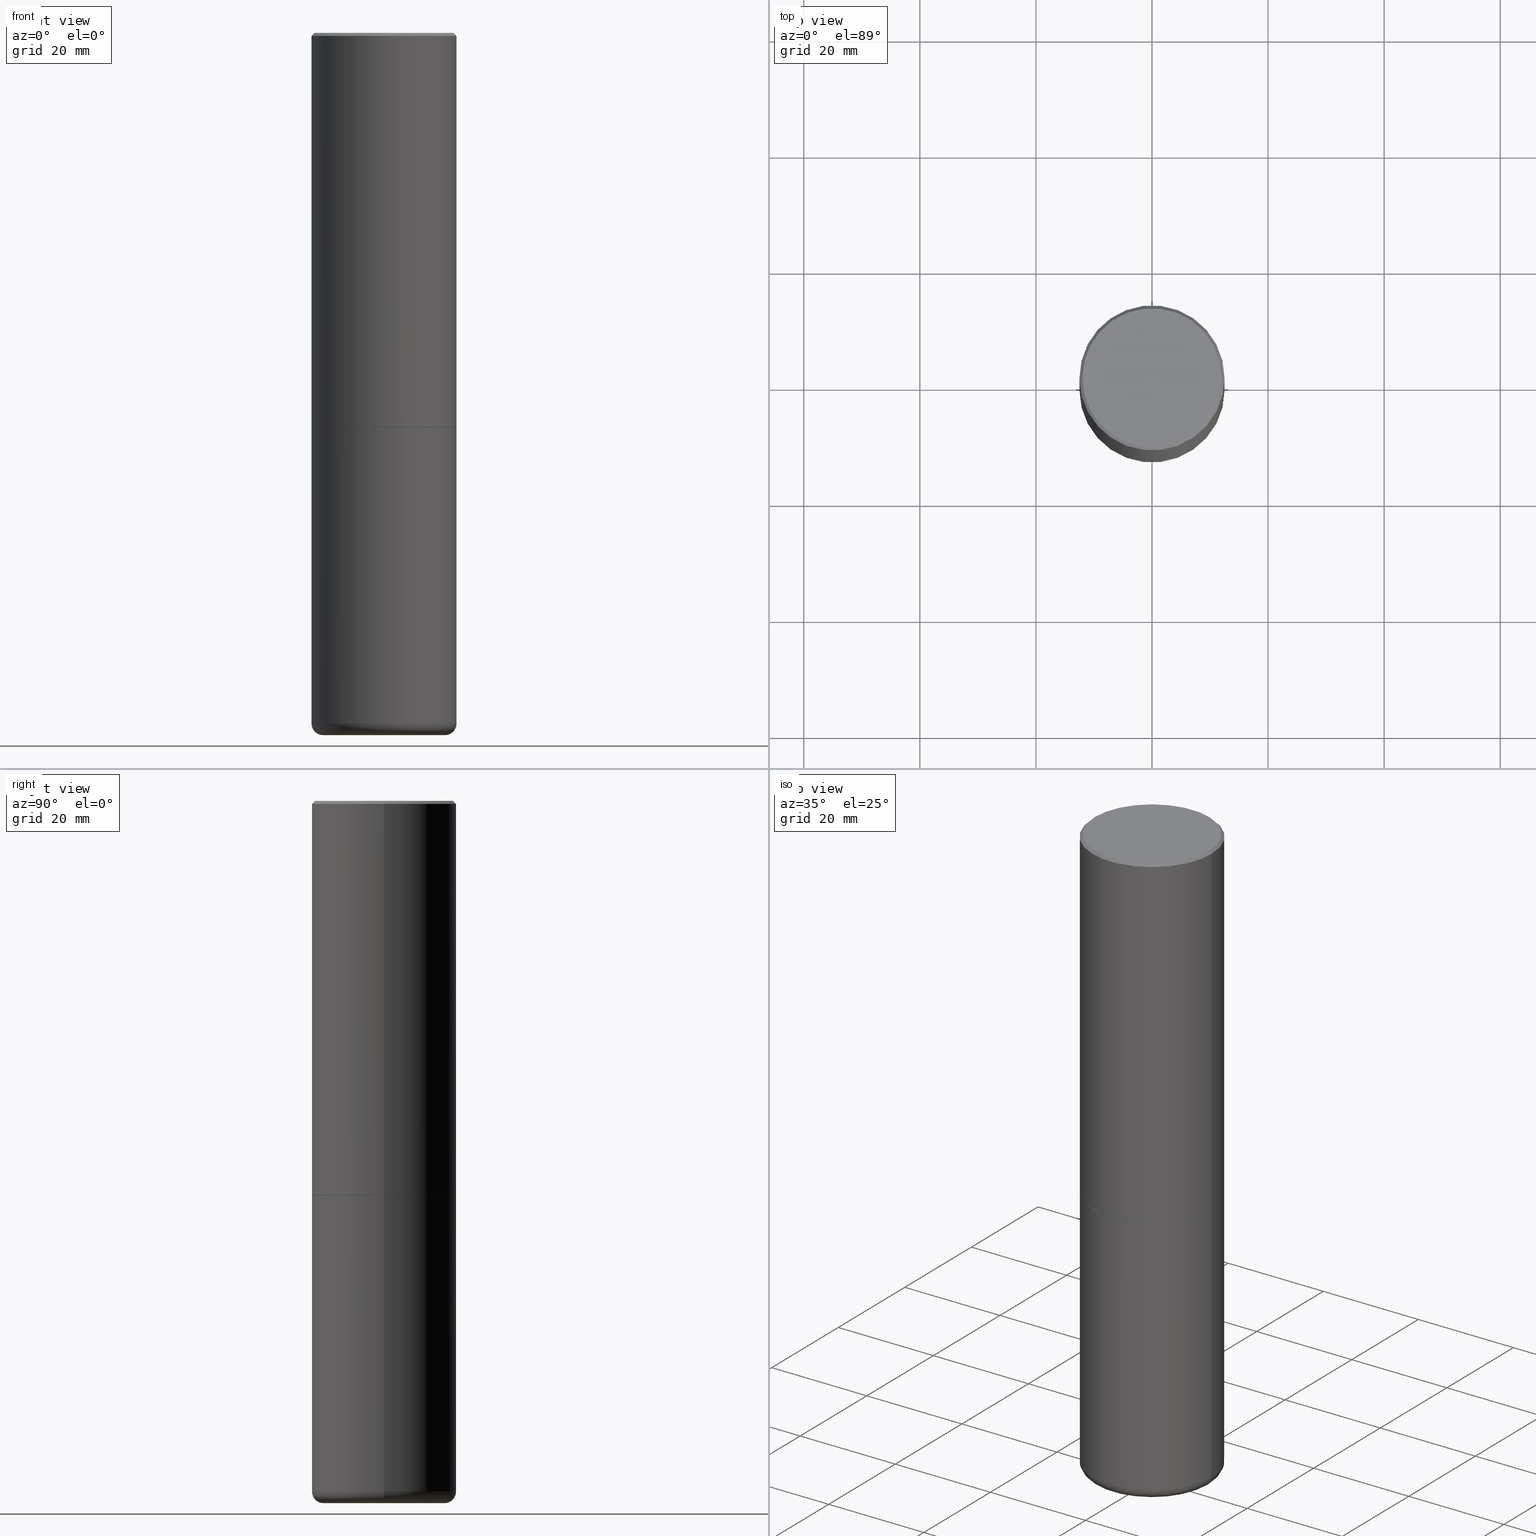
[diagram: canonical four-view strip — front | top / right | iso, engineering-drawing reading convention]
A machine part, canonical four-view strip (front | top / right | iso — engineering-drawing reading convention). The complete STEP part file that produces these views, byte-faithful:
ISO-10303-21;
HEADER;
FILE_DESCRIPTION (( 'STEP AP203' ),
    '1' );
FILE_NAME ('47086.STEP',
    '2024-03-05T19:18:14',
    ( '' ),
    ( '' ),
    'SwSTEP 2.0',
    'SolidWorks 2023',
    '' );
FILE_SCHEMA (( 'CONFIG_CONTROL_DESIGN' ));
ENDSEC;

DATA;
#1 = APPROVAL_STATUS ( 'not_yet_approved' ) ;
#2 = EDGE_CURVE ( 'NONE', #334, #208, #263, .T. ) ;
#3 = DIRECTION ( 'NONE',  ( -2.438088387897960049E-29, 3.491481338843145188E-15, 1.000000000000000000 ) ) ;
#4 = VECTOR ( 'NONE', #309, 39.37007874015748143 ) ;
#5 = APPROVAL ( #348, 'UNSPECIFIED' ) ;
#6 = CARTESIAN_POINT ( 'NONE',  ( -0.4921499999999999764, -9.355730456439111248E-15, -2.677199999999999580 ) ) ;
#7 = DIRECTION ( 'NONE',  ( -1.000000000000000000, 6.982962677686265922E-15, -4.876176775795935793E-29 ) ) ;
#8 = ADVANCED_FACE ( 'NONE', ( #85 ), #271, .T. ) ;
#9 = AXIS2_PLACEMENT_3D ( 'NONE', #167, #198, #79 ) ;
#10 = AXIS2_PLACEMENT_3D ( 'NONE', #403, #369, #173 ) ;
#11 = CC_DESIGN_PERSON_AND_ORGANIZATION_ASSIGNMENT ( #30, #122, ( #178 ) ) ;
#12 = DIRECTION ( 'NONE',  ( 7.105427357601001859E-15, 1.000000000000000000, -3.491481338843145583E-15 ) ) ;
#13 = CARTESIAN_POINT ( 'NONE',  ( 4.890937612370299433E-31, -6.982962677686328587E-17, -0.02000000000000010797 ) ) ;
#14 = ORIENTED_EDGE ( 'NONE', *, *, #42, .F. ) ;
#15 = CARTESIAN_POINT ( 'NONE',  ( 0.4921499999999999764, -1.278405892217416209E-14, -2.677199999999999580 ) ) ;
#16 = ADVANCED_FACE ( 'NONE', ( #177 ), #114, .T. ) ;
#17 = CIRCLE ( 'NONE', #191, 0.4921499999999999764 ) ;
#18 = AXIS2_PLACEMENT_3D ( 'NONE', #111, #297, #236 ) ;
#19 = VERTEX_POINT ( 'NONE', #305 ) ;
#20 = EDGE_LOOP ( 'NONE', ( #171, #82, #399, #50 ) ) ;
#21 = CONICAL_SURFACE ( 'NONE', #250, 0.4911499999999999755, 0.7853981633974482790 ) ;
#22 = ORGANIZATION ( 'UNSPECIFIED', 'UNSPECIFIED', '' ) ;
#23 = DIRECTION ( 'NONE',  ( -2.445468806185136597E-29, 3.491481338843145583E-15, 1.000000000000000000 ) ) ;
#24 = CARTESIAN_POINT ( 'NONE',  ( 1.164972429890475298E-28, -1.663271880198097531E-14, -4.763799999999999812 ) ) ;
#25 = APPLICATION_CONTEXT ( 'configuration controlled 3d designs of mechanical parts and assemblies' ) ;
#26 = CARTESIAN_POINT ( 'NONE',  ( 6.547009087918846705E-29, -9.347393840350866318E-15, -2.677199999999999580 ) ) ;
#27 = ADVANCED_FACE ( 'NONE', ( #65 ), #216, .T. ) ;
#28 = AXIS2_PLACEMENT_3D ( 'NONE', #192, #93, #253 ) ;
#29 = CARTESIAN_POINT ( 'NONE',  ( 1.164972429890475298E-28, -1.663271880198097531E-14, -4.763799999999999812 ) ) ;
#30 = PERSON_AND_ORGANIZATION ( #395, #22 ) ;
#31 = DIRECTION ( 'NONE',  ( -2.445468806185136877E-29, 3.491481338843145188E-15, 1.000000000000000000 ) ) ;
#32 = DIRECTION ( 'NONE',  ( -2.445468806185136597E-29, 3.491481338843145583E-15, 1.000000000000000000 ) ) ;
#33 = AXIS2_PLACEMENT_3D ( 'NONE', #389, #70, #353 ) ;
#34 = CARTESIAN_POINT ( 'NONE',  ( 0.4921499999999999764, -3.446223716380122349E-15, -0.02000000000000010797 ) ) ;
#35 = FACE_OUTER_BOUND ( 'NONE', #174, .T. ) ;
#36 = EDGE_CURVE ( 'NONE', #298, #201, #383, .T. ) ;
#37 = CARTESIAN_POINT ( 'NONE',  ( -0.4911499999999999755, -5.852264739316912816E-15, -2.677200000000000024 ) ) ;
#38 = CARTESIAN_POINT ( 'NONE',  ( -0.4134499999999999287, -1.342020027961388708E-14, -4.685099999999999376 ) ) ;
#39 = CIRCLE ( 'NONE', #136, 0.4921499999999999764 ) ;
#40 = CARTESIAN_POINT ( 'NONE',  ( 0.4921500000000000874, -3.436665081823296565E-15, 2.399810400207970163E-29 ) ) ;
#41 = ORIENTED_EDGE ( 'NONE', *, *, #299, .T. ) ;
#42 = EDGE_CURVE ( 'NONE', #408, #201, #47, .T. ) ;
#43 = DIRECTION ( 'NONE',  ( -2.445468806185136597E-29, 3.491481338843145583E-15, 1.000000000000000000 ) ) ;
#44 = EDGE_LOOP ( 'NONE', ( #231, #308 ) ) ;
#45 = CARTESIAN_POINT ( 'NONE',  ( 0.000000000000000000, 0.000000000000000000, 0.000000000000000000 ) ) ;
#46 = ORIENTED_EDGE ( 'NONE', *, *, #59, .T. ) ;
#47 = CIRCLE ( 'NONE', #219, 0.4921499999999999764 ) ;
#48 = LOCAL_TIME ( 14, 18, 14.00000000000000000, #150 ) ;
#49 = CARTESIAN_POINT ( 'NONE',  ( 0.000000000000000000, 0.000000000000000000, 0.000000000000000000 ) ) ;
#50 = ORIENTED_EDGE ( 'NONE', *, *, #81, .F. ) ;
#51 = EDGE_CURVE ( 'NONE', #203, #334, #161, .T. ) ;
#52 = DIRECTION ( 'NONE',  ( -2.445468806185136597E-29, 3.491481338843145583E-15, 1.000000000000000000 ) ) ;
#53 = ORIENTED_EDGE ( 'NONE', *, *, #235, .F. ) ;
#54 = ADVANCED_FACE ( 'NONE', ( #211 ), #331, .T. ) ;
#55 = ORIENTED_EDGE ( 'NONE', *, *, #232, .T. ) ;
#56 = AXIS2_PLACEMENT_3D ( 'NONE', #62, #273, #410 ) ;
#57 = ORIENTED_EDGE ( 'NONE', *, *, #265, .T. ) ;
#58 = EDGE_CURVE ( 'NONE', #366, #328, #237, .T. ) ;
#59 = EDGE_CURVE ( 'NONE', #239, #328, #60, .T. ) ;
#60 = LINE ( 'NONE', #311, #4 ) ;
#61 = APPROVAL_STATUS ( 'not_yet_approved' ) ;
#62 = CARTESIAN_POINT ( 'NONE',  ( 0.000000000000000000, 0.000000000000000000, 0.000000000000000000 ) ) ;
#63 = COORDINATED_UNIVERSAL_TIME_OFFSET ( 5, 0, .BEHIND. ) ;
#64 = CIRCLE ( 'NONE', #357, 0.4721499999999996255 ) ;
#65 = FACE_OUTER_BOUND ( 'NONE', #20, .T. ) ;
#66 = DIMENSIONAL_EXPONENTS ( 1.000000000000000000, 0.000000000000000000, 0.000000000000000000, 0.000000000000000000, 0.000000000000000000, 0.000000000000000000, 0.000000000000000000 ) ;
#67 = DIRECTION ( 'NONE',  ( 1.000000000000000000, -6.982962677686268288E-15, 0.000000000000000000 ) ) ;
#68 = DIRECTION ( 'NONE',  ( -2.445468806185136597E-29, 3.491481338843145583E-15, 1.000000000000000000 ) ) ;
#69 = FACE_OUTER_BOUND ( 'NONE', #166, .T. ) ;
#70 = DIRECTION ( 'NONE',  ( 2.438088387897960049E-29, -3.491481338843145188E-15, -1.000000000000000000 ) ) ;
#71 = DIRECTION ( 'NONE',  ( -2.445468806185136877E-29, 3.491481338843145188E-15, 1.000000000000000000 ) ) ;
#72 = DIRECTION ( 'NONE',  ( 1.000000000000000000, -6.982962677686265922E-15, 0.000000000000000000 ) ) ;
#73 = CLOSED_SHELL ( 'NONE', ( #319, #156, #194, #27, #54, #16 ) ) ;
#74 = LOCAL_TIME ( 14, 18, 14.00000000000000000, #415 ) ;
#75 = LENGTH_MEASURE_WITH_UNIT ( LENGTH_MEASURE( 0.02539999999999999897 ), #102 );
#76 = EDGE_LOOP ( 'NONE', ( #206, #168, #137, #375 ) ) ;
#77 = ORIENTED_EDGE ( 'NONE', *, *, #58, .F. ) ;
#78 = DIRECTION ( 'NONE',  ( -2.445468806185136877E-29, 3.491481338843145188E-15, 1.000000000000000000 ) ) ;
#79 = DIRECTION ( 'NONE',  ( 1.000000000000000000, -6.982962677686265922E-15, 4.882029041999365698E-29 ) ) ;
#80 = ORIENTED_EDGE ( 'NONE', *, *, #278, .T. ) ;
#81 = EDGE_CURVE ( 'NONE', #201, #408, #39, .T. ) ;
#82 = ORIENTED_EDGE ( 'NONE', *, *, #390, .T. ) ;
#83 = EDGE_CURVE ( 'NONE', #108, #103, #188, .T. ) ;
#84 = VECTOR ( 'NONE', #134, 39.37007874015748143 ) ;
#85 = FACE_OUTER_BOUND ( 'NONE', #295, .T. ) ;
#86 = APPLICATION_CONTEXT ( 'configuration controlled 3d designs of mechanical parts and assemblies' ) ;
#87 = APPLICATION_PROTOCOL_DEFINITION ( 'international standard', 'config_control_design', 1994, #25 ) ;
#88 = EDGE_LOOP ( 'NONE', ( #338, #234, #14, #371 ) ) ;
#89 = DATE_AND_TIME ( #128, #74 ) ;
#90 = MANIFOLD_SOLID_BREP ( 'Body-Move/Copy2[1]', #73 ) ;
#91 = ADVANCED_FACE ( 'NONE', ( #69 ), #115, .T. ) ;
#92 = EDGE_LOOP ( 'NONE', ( #303, #80, #176, #117 ) ) ;
#93 = DIRECTION ( 'NONE',  ( -2.445468806185136597E-29, 3.491481338843145583E-15, 1.000000000000000000 ) ) ;
#94 = DATE_TIME_ROLE ( 'classification_date' ) ;
#95 = DIRECTION ( 'NONE',  ( -2.445468806185136597E-29, 3.491481338843145583E-15, 1.000000000000000000 ) ) ;
#96 = COORDINATED_UNIVERSAL_TIME_OFFSET ( 5, 0, .BEHIND. ) ;
#97 = CARTESIAN_POINT ( 'NONE',  ( 6.547009087918847826E-29, -9.347393840350869473E-15, -2.677200000000000024 ) ) ;
#98 = DIRECTION ( 'NONE',  ( -2.445468806185136597E-29, 3.491481338843145583E-15, 1.000000000000000000 ) ) ;
#99 = AXIS2_PLACEMENT_3D ( 'NONE', #109, #52, #336 ) ;
#100 = CARTESIAN_POINT ( 'NONE',  ( 6.547009087918847826E-29, -9.347393840350869473E-15, -2.677200000000000024 ) ) ;
#101 = LINE ( 'NONE', #204, #197 ) ;
#102 =( LENGTH_UNIT ( ) NAMED_UNIT ( * ) SI_UNIT ( $, .METRE. ) );
#103 = VERTEX_POINT ( 'NONE', #159 ) ;
#104 = CIRCLE ( 'NONE', #230, 0.4911499999999999755 ) ;
#105 = APPROVAL_PERSON_ORGANIZATION ( #417, #244, #214 ) ;
#106 = CC_DESIGN_PERSON_AND_ORGANIZATION_ASSIGNMENT ( #184, #313, ( #274 ) ) ;
#107 = CARTESIAN_POINT ( 'NONE',  ( 0.4134499999999999287, -1.951982472107036283E-14, -4.763799999999999812 ) ) ;
#108 = VERTEX_POINT ( 'NONE', #37 ) ;
#109 = CARTESIAN_POINT ( 'NONE',  ( 6.544563619112662223E-29, -9.343902359012024888E-15, -2.676199999999999690 ) ) ;
#110 = EDGE_LOOP ( 'NONE', ( #270, #292, #46, #57 ) ) ;
#111 = CARTESIAN_POINT ( 'NONE',  ( 4.890937612370299433E-31, -6.982962677686328587E-17, -0.02000000000000010797 ) ) ;
#112 = AXIS2_PLACEMENT_3D ( 'NONE', #279, #416, #247 ) ;
#113 = EDGE_LOOP ( 'NONE', ( #53, #144 ) ) ;
#114 = PLANE ( 'NONE',  #350 ) ;
#115 = CONICAL_SURFACE ( 'NONE', #28, 0.4911499999999999755, 0.7853981633974482790 ) ;
#116 = CALENDAR_DATE ( 2024, 5, 3 ) ;
#117 = ORIENTED_EDGE ( 'NONE', *, *, #59, .F. ) ;
#118 = PERSON_AND_ORGANIZATION ( #395, #22 ) ;
#119 = EDGE_CURVE ( 'NONE', #108, #267, #147, .T. ) ;
#120 = DIRECTION ( 'NONE',  ( -6.982962677686266711E-15, -1.000000000000000000, 3.491481338843145583E-15 ) ) ;
#121 = PRODUCT_DEFINITION_SHAPE ( 'NONE', 'NONE',  #377 ) ;
#122 = PERSON_AND_ORGANIZATION_ROLE ( 'creator' ) ;
#123 = EDGE_LOOP ( 'NONE', ( #140, #402, #238, #262 ) ) ;
#124 = PERSON_AND_ORGANIZATION ( #395, #22 ) ;
#125 = AXIS2_PLACEMENT_3D ( 'NONE', #38, #12, #193 ) ;
#126 = AXIS2_PLACEMENT_3D ( 'NONE', #248, #387, #345 ) ;
#127 = DIRECTION ( 'NONE',  ( -2.445468806185136597E-29, 3.491481338843145583E-15, 1.000000000000000000 ) ) ;
#128 = CALENDAR_DATE ( 2024, 5, 3 ) ;
#129 = CARTESIAN_POINT ( 'NONE',  ( 4.890937612370299433E-31, -6.982962677686328587E-17, -0.02000000000000010797 ) ) ;
#130 = EDGE_CURVE ( 'NONE', #267, #108, #104, .T. ) ;
#131 = CARTESIAN_POINT ( 'NONE',  ( 0.4921499999999999764, -1.979460430243731302E-14, -4.685099999999999376 ) ) ;
#132 = FACE_OUTER_BOUND ( 'NONE', #44, .T. ) ;
#133 = CARTESIAN_POINT ( 'NONE',  ( -0.4721499999999996255, 3.331920641658000829E-15, 2.774533118565036250E-16 ) ) ;
#134 = DIRECTION ( 'NONE',  ( -2.445468806185136877E-29, 3.491481338843145188E-15, 1.000000000000000000 ) ) ;
#135 = ORIENTED_EDGE ( 'NONE', *, *, #396, .T. ) ;
#136 = AXIS2_PLACEMENT_3D ( 'NONE', #26, #245, #320 ) ;
#137 = ORIENTED_EDGE ( 'NONE', *, *, #2, .T. ) ;
#138 = AXIS2_PLACEMENT_3D ( 'NONE', #260, #401, #261 ) ;
#139 = CARTESIAN_POINT ( 'NONE',  ( 0.4921499999999999764, -3.446223716380122349E-15, -0.02000000000000010797 ) ) ;
#140 = ORIENTED_EDGE ( 'NONE', *, *, #83, .F. ) ;
#141 = ORIENTED_EDGE ( 'NONE', *, *, #326, .T. ) ;
#142 = VERTEX_POINT ( 'NONE', #285 ) ;
#143 = CIRCLE ( 'NONE', #125, 0.07869999999999996443 ) ;
#144 = ORIENTED_EDGE ( 'NONE', *, *, #51, .F. ) ;
#145 = ORIENTED_EDGE ( 'NONE', *, *, #346, .T. ) ;
#146 = DIRECTION ( 'NONE',  ( -2.445468806185136597E-29, 3.491481338843145583E-15, 1.000000000000000000 ) ) ;
#147 = CIRCLE ( 'NONE', #394, 0.4911499999999999755 ) ;
#148 = APPROVAL_DATE_TIME ( #152, #244 ) ;
#149 = CARTESIAN_POINT ( 'NONE',  ( 4.890937612370299433E-31, -6.982962677686328587E-17, -0.02000000000000010797 ) ) ;
#150 = COORDINATED_UNIVERSAL_TIME_OFFSET ( 5, 0, .BEHIND. ) ;
#151 = DIRECTION ( 'NONE',  ( -2.445468806185136597E-29, 3.491481338843145583E-15, 1.000000000000000000 ) ) ;
#152 = DATE_AND_TIME ( #189, #242 ) ;
#153 = LINE ( 'NONE', #256, #225 ) ;
#154 = CALENDAR_DATE ( 2024, 5, 3 ) ;
#155 = CLOSED_SHELL ( 'NONE', ( #91, #351, #307, #381, #8, #287, #209, #272 ) ) ;
#156 = ADVANCED_FACE ( 'NONE', ( #35 ), #257, .T. ) ;
#157 = VECTOR ( 'NONE', #78, 39.37007874015748143 ) ;
#158 = FACE_OUTER_BOUND ( 'NONE', #330, .T. ) ;
#159 = CARTESIAN_POINT ( 'NONE',  ( -0.4921500000000003094, -1.209929918851106266E-15, -2.676199999999999690 ) ) ;
#160 = DIRECTION ( 'NONE',  ( -0.7071067811865474617, 7.493145998870352582E-15, 0.7071067811865474617 ) ) ;
#161 = CIRCLE ( 'NONE', #304, 0.4134499999999999287 ) ;
#162 = CARTESIAN_POINT ( 'NONE',  ( -0.4911499999999999755, -5.857563193665136796E-15, -2.677200000000000024 ) ) ;
#163 = CC_DESIGN_SECURITY_CLASSIFICATION ( #212, ( #178 ) ) ;
#164 = CC_DESIGN_PERSON_AND_ORGANIZATION_ASSIGNMENT ( #275, #352, ( #377 ) ) ;
#165 = DIRECTION ( 'NONE',  ( 1.000000000000000000, -6.982962677686265922E-15, 4.876176775795935793E-29 ) ) ;
#166 = EDGE_LOOP ( 'NONE', ( #182, #325, #404, #218 ) ) ;
#167 = CARTESIAN_POINT ( 'NONE',  ( -6.785034193178930130E-45, 9.687230607472910058E-31, 2.774533118565267978E-16 ) ) ;
#168 = ORIENTED_EDGE ( 'NONE', *, *, #51, .T. ) ;
#169 = EDGE_CURVE ( 'NONE', #208, #408, #153, .T. ) ;
#170 = CIRCLE ( 'NONE', #9, 0.4721499999999996255 ) ;
#171 = ORIENTED_EDGE ( 'NONE', *, *, #36, .F. ) ;
#172 = CC_DESIGN_APPROVAL ( #244, ( #178 ) ) ;
#173 = DIRECTION ( 'NONE',  ( 1.000000000000000000, -6.982962677686265922E-15, 0.000000000000000000 ) ) ;
#174 = EDGE_LOOP ( 'NONE', ( #301, #55, #374, #276 ) ) ;
#175 = FACE_OUTER_BOUND ( 'NONE', #110, .T. ) ;
#176 = ORIENTED_EDGE ( 'NONE', *, *, #58, .T. ) ;
#177 = FACE_OUTER_BOUND ( 'NONE', #113, .T. ) ;
#178 = PRODUCT_DEFINITION_FORMATION_WITH_SPECIFIED_SOURCE ( 'ANY', '', #274, .NOT_KNOWN. ) ;
#179 = ORIENTED_EDGE ( 'NONE', *, *, #42, .T. ) ;
#180 = DIRECTION ( 'NONE',  ( 1.000000000000000000, -6.982962677686265922E-15, 0.000000000000000000 ) ) ;
#181 = DATE_AND_TIME ( #220, #413 ) ;
#182 = ORIENTED_EDGE ( 'NONE', *, *, #130, .T. ) ;
#183 = AXIS2_PLACEMENT_3D ( 'NONE', #13, #365, #207 ) ;
#184 = PERSON_AND_ORGANIZATION ( #395, #22 ) ;
#185 = CIRCLE ( 'NONE', #99, 0.4921500000000003094 ) ;
#186 = CARTESIAN_POINT ( 'NONE',  ( -0.4921499999999999764, 3.496936074043332897E-15, -2.420853904668951509E-29 ) ) ;
#187 = SECURITY_CLASSIFICATION_LEVEL ( 'unclassified' ) ;
#188 = LINE ( 'NONE', #162, #269 ) ;
#189 = CALENDAR_DATE ( 2024, 5, 3 ) ;
#190 = DIRECTION ( 'NONE',  ( -2.445468806185136597E-29, 3.491481338843145583E-15, 1.000000000000000000 ) ) ;
#191 = AXIS2_PLACEMENT_3D ( 'NONE', #129, #127, #226 ) ;
#192 = CARTESIAN_POINT ( 'NONE',  ( 6.547009087918847826E-29, -9.347393840350869473E-15, -2.677200000000000024 ) ) ;
#193 = DIRECTION ( 'NONE',  ( -1.000000000000000000, 7.105427357600995548E-15, 0.000000000000000000 ) ) ;
#194 = ADVANCED_FACE ( 'NONE', ( #158 ), #281, .F. ) ;
#195 = DIRECTION ( 'NONE',  ( 1.000000000000000000, -6.982962677686265922E-15, 4.876176775795935793E-29 ) ) ;
#196 = CC_DESIGN_PERSON_AND_ORGANIZATION_ASSIGNMENT ( #124, #217, ( #212 ) ) ;
#197 = VECTOR ( 'NONE', #324, 39.37007874015748854 ) ;
#198 = DIRECTION ( 'NONE',  ( -2.445468806185136597E-29, 3.491481338843145583E-15, 1.000000000000000000 ) ) ;
#199 = CIRCLE ( 'NONE', #138, 0.4921499999999999764 ) ;
#200 = ORIENTED_EDGE ( 'NONE', *, *, #265, .F. ) ;
#201 = VERTEX_POINT ( 'NONE', #6 ) ;
#202 = DIRECTION ( 'NONE',  ( -2.445468806185136597E-29, 3.491481338843145583E-15, 1.000000000000000000 ) ) ;
#203 = VERTEX_POINT ( 'NONE', #290 ) ;
#204 = CARTESIAN_POINT ( 'NONE',  ( 0.4911499999999999755, -1.277707595949647924E-14, -2.677200000000000024 ) ) ;
#205 = CIRCLE ( 'NONE', #317, 0.4921500000000003094 ) ;
#206 = ORIENTED_EDGE ( 'NONE', *, *, #232, .F. ) ;
#207 = DIRECTION ( 'NONE',  ( -1.000000000000000000, 6.982962677686265922E-15, 0.000000000000000000 ) ) ;
#208 = VERTEX_POINT ( 'NONE', #131 ) ;
#209 = ADVANCED_FACE ( 'NONE', ( #132 ), #259, .F. ) ;
#210 = ORIENTED_EDGE ( 'NONE', *, *, #215, .T. ) ;
#211 = FACE_OUTER_BOUND ( 'NONE', #76, .T. ) ;
#212 = SECURITY_CLASSIFICATION ( '', '', #187 ) ;
#213 = DIRECTION ( 'NONE',  ( 1.000000000000000000, -6.982962677686267499E-15, 4.883557194083112340E-29 ) ) ;
#214 = APPROVAL_ROLE ( '' ) ;
#215 = EDGE_CURVE ( 'NONE', #19, #239, #64, .T. ) ;
#216 = CYLINDRICAL_SURFACE ( 'NONE', #56, 0.4921499999999999764 ) ;
#217 = PERSON_AND_ORGANIZATION_ROLE ( 'classification_officer' ) ;
#218 = ORIENTED_EDGE ( 'NONE', *, *, #339, .F. ) ;
#219 = AXIS2_PLACEMENT_3D ( 'NONE', #418, #151, #379 ) ;
#220 = CALENDAR_DATE ( 2024, 5, 3 ) ;
#221 = DIRECTION ( 'NONE',  ( 1.000000000000000000, -6.982962677686268288E-15, 0.000000000000000000 ) ) ;
#222 = APPROVAL_DATE_TIME ( #181, #288 ) ;
#223 = CARTESIAN_POINT ( 'NONE',  ( 1.164972429890475298E-28, -1.663271880198097531E-14, -4.763799999999999812 ) ) ;
#224 = DIRECTION ( 'NONE',  ( 1.000000000000000000, -6.982962677686265922E-15, 4.882029041999365698E-29 ) ) ;
#225 = VECTOR ( 'NONE', #71, 39.37007874015748143 ) ;
#226 = DIRECTION ( 'NONE',  ( 1.000000000000000000, -6.982962677686265922E-15, 0.000000000000000000 ) ) ;
#227 = MANIFOLD_SOLID_BREP ( 'Body-Move/Copy2[2]', #155 ) ;
#228 = DIRECTION ( 'NONE',  ( 1.000000000000000000, -6.982962677686268288E-15, 0.000000000000000000 ) ) ;
#229 = FACE_OUTER_BOUND ( 'NONE', #92, .T. ) ;
#230 = AXIS2_PLACEMENT_3D ( 'NONE', #322, #68, #221 ) ;
#231 = ORIENTED_EDGE ( 'NONE', *, *, #130, .F. ) ;
#232 = EDGE_CURVE ( 'NONE', #203, #298, #143, .T. ) ;
#233 = CYLINDRICAL_SURFACE ( 'NONE', #312, 0.4921499999999999764 ) ;
#234 = ORIENTED_EDGE ( 'NONE', *, *, #36, .T. ) ;
#235 = EDGE_CURVE ( 'NONE', #334, #203, #386, .T. ) ;
#236 = DIRECTION ( 'NONE',  ( -1.000000000000000000, 6.982962677686265922E-15, 0.000000000000000000 ) ) ;
#237 = CIRCLE ( 'NONE', #378, 0.4921499999999999764 ) ;
#238 = ORIENTED_EDGE ( 'NONE', *, *, #339, .T. ) ;
#239 = VERTEX_POINT ( 'NONE', #133 ) ;
#240 = DIRECTION ( 'NONE',  ( 2.438088387897960049E-29, -3.491481338843145188E-15, -1.000000000000000000 ) ) ;
#241 = CONICAL_SURFACE ( 'NONE', #183, 0.4921499999999999764, 0.7853981633974471688 ) ;
#242 = LOCAL_TIME ( 14, 18, 14.00000000000000000, #63 ) ;
#243 = APPROVAL_ROLE ( '' ) ;
#244 = APPROVAL ( #1, 'UNSPECIFIED' ) ;
#245 = DIRECTION ( 'NONE',  ( -2.445468806185136597E-29, 3.491481338843145583E-15, 1.000000000000000000 ) ) ;
#246 = PERSON_AND_ORGANIZATION ( #395, #22 ) ;
#247 = DIRECTION ( 'NONE',  ( 1.000000000000000000, -6.982962677686265922E-15, 4.876176775795935793E-29 ) ) ;
#248 = CARTESIAN_POINT ( 'NONE',  ( 0.000000000000000000, 0.000000000000000000, 0.000000000000000000 ) ) ;
#249 = DIRECTION ( 'NONE',  ( 1.000000000000000000, -6.982962677686247778E-15, 0.000000000000000000 ) ) ;
#250 = AXIS2_PLACEMENT_3D ( 'NONE', #97, #321, #228 ) ;
#251 = COORDINATED_UNIVERSAL_TIME_OFFSET ( 5, 0, .BEHIND. ) ;
#252 =( GEOMETRIC_REPRESENTATION_CONTEXT ( 3 ) GLOBAL_UNCERTAINTY_ASSIGNED_CONTEXT ( ( #411 ) ) GLOBAL_UNIT_ASSIGNED_CONTEXT ( ( #302, #327, #400 ) ) REPRESENTATION_CONTEXT ( 'NONE', 'WORKASPACE' ) );
#253 = DIRECTION ( 'NONE',  ( 1.000000000000000000, -6.982962677686268288E-15, 0.000000000000000000 ) ) ;
#254 = PERSON_AND_ORGANIZATION_ROLE ( 'design_supplier' ) ;
#255 = DIRECTION ( 'NONE',  ( 0.7071067811865466846, -7.319954787623252890E-15, -0.7071067811865483499 ) ) ;
#256 = CARTESIAN_POINT ( 'NONE',  ( 0.4921499999999999764, -3.436665081823295777E-15, 2.399810400207969603E-29 ) ) ;
#257 = TOROIDAL_SURFACE ( 'NONE', #323, 0.4134499999999999287, 0.07869999999999996443 ) ;
#258 = CC_DESIGN_DATE_AND_TIME_ASSIGNMENT ( #89, #380, ( #377 ) ) ;
#259 = PLANE ( 'NONE',  #342 ) ;
#260 = CARTESIAN_POINT ( 'NONE',  ( 1.145726590385798145E-28, -1.635793922061402197E-14, -4.685099999999999376 ) ) ;
#261 = DIRECTION ( 'NONE',  ( 1.000000000000000000, -6.982962677686265922E-15, 0.000000000000000000 ) ) ;
#262 = ORIENTED_EDGE ( 'NONE', *, *, #299, .F. ) ;
#263 = CIRCLE ( 'NONE', #405, 0.07869999999999996443 ) ;
#264 = CARTESIAN_POINT ( 'NONE',  ( -0.4921499999999999764, 3.366835455046432478E-15, -0.02000000000000010797 ) ) ;
#265 = EDGE_CURVE ( 'NONE', #328, #366, #17, .T. ) ;
#266 = DIRECTION ( 'NONE',  ( -2.445468806185136597E-29, 3.491481338843145583E-15, 1.000000000000000000 ) ) ;
#267 = VERTEX_POINT ( 'NONE', #385 ) ;
#268 = DATE_AND_TIME ( #154, #48 ) ;
#269 = VECTOR ( 'NONE', #160, 39.37007874015748854 ) ;
#270 = ORIENTED_EDGE ( 'NONE', *, *, #278, .F. ) ;
#271 = CYLINDRICAL_SURFACE ( 'NONE', #112, 0.4921500000000000874 ) ;
#272 = ADVANCED_FACE ( 'NONE', ( #359 ), #356, .F. ) ;
#273 = DIRECTION ( 'NONE',  ( -2.445468806185136597E-29, 3.491481338843145583E-15, 1.000000000000000000 ) ) ;
#274 = PRODUCT ( '47086', '47086', '', ( #384 ) ) ;
#275 = PERSON_AND_ORGANIZATION ( #395, #22 ) ;
#276 = ORIENTED_EDGE ( 'NONE', *, *, #2, .F. ) ;
#277 = PERSON_AND_ORGANIZATION ( #395, #22 ) ;
#278 = EDGE_CURVE ( 'NONE', #19, #366, #354, .T. ) ;
#279 = CARTESIAN_POINT ( 'NONE',  ( 0.000000000000000000, 0.000000000000000000, 0.000000000000000000 ) ) ;
#280 = APPROVAL_DATE_TIME ( #407, #5 ) ;
#281 = PLANE ( 'NONE',  #282 ) ;
#282 = AXIS2_PLACEMENT_3D ( 'NONE', #286, #289, #7 ) ;
#283 = APPROVAL_ROLE ( '' ) ;
#284 = CONICAL_SURFACE ( 'NONE', #18, 0.4921499999999999764, 0.7853981633974471688 ) ;
#285 = CARTESIAN_POINT ( 'NONE',  ( 0.4921500000000003094, -1.278056744083532224E-14, -2.676199999999999690 ) ) ;
#286 = CARTESIAN_POINT ( 'NONE',  ( 6.547009087918846705E-29, -9.347393840350866318E-15, -2.677199999999999580 ) ) ;
#287 = ADVANCED_FACE ( 'NONE', ( #392 ), #21, .T. ) ;
#288 = APPROVAL ( #61, 'UNSPECIFIED' ) ;
#289 = DIRECTION ( 'NONE',  ( 2.438088387897960049E-29, -3.491481338843145188E-15, -1.000000000000000000 ) ) ;
#290 = CARTESIAN_POINT ( 'NONE',  ( -0.4134499999999999287, -1.327799150377576435E-14, -4.763799999999999812 ) ) ;
#291 = LINE ( 'NONE', #293, #84 ) ;
#292 = ORIENTED_EDGE ( 'NONE', *, *, #326, .F. ) ;
#293 = CARTESIAN_POINT ( 'NONE',  ( -0.4921500000000000874, 3.496936074043333686E-15, -2.420853904668952350E-29 ) ) ;
#294 = CC_DESIGN_DATE_AND_TIME_ASSIGNMENT ( #268, #94, ( #212 ) ) ;
#295 = EDGE_LOOP ( 'NONE', ( #368, #41, #145, #200 ) ) ;
#296 = APPROVAL_PERSON_ORGANIZATION ( #277, #288, #283 ) ;
#297 = DIRECTION ( 'NONE',  ( 2.445468806185136597E-29, -3.491481338843145583E-15, -1.000000000000000000 ) ) ;
#298 = VERTEX_POINT ( 'NONE', #367 ) ;
#299 = EDGE_CURVE ( 'NONE', #103, #142, #205, .T. ) ;
#300 = FACE_OUTER_BOUND ( 'NONE', #88, .T. ) ;
#301 = ORIENTED_EDGE ( 'NONE', *, *, #235, .T. ) ;
#302 =( CONVERSION_BASED_UNIT ( 'INCH', #75 ) LENGTH_UNIT ( ) NAMED_UNIT ( #66 ) );
#303 = ORIENTED_EDGE ( 'NONE', *, *, #215, .F. ) ;
#304 = AXIS2_PLACEMENT_3D ( 'NONE', #29, #23, #414 ) ;
#305 = CARTESIAN_POINT ( 'NONE',  ( 0.4721499999999996255, -3.342703923013973791E-15, 2.774533118565500199E-16 ) ) ;
#306 = CC_DESIGN_APPROVAL ( #288, ( #212 ) ) ;
#307 = ADVANCED_FACE ( 'NONE', ( #229 ), #241, .T. ) ;
#308 = ORIENTED_EDGE ( 'NONE', *, *, #119, .F. ) ;
#309 = DIRECTION ( 'NONE',  ( -0.7071067811865466846, 2.468850131082247989E-15, -0.7071067811865483499 ) ) ;
#310 = SHAPE_DEFINITION_REPRESENTATION ( #121, #388 ) ;
#311 = CARTESIAN_POINT ( 'NONE',  ( -0.4921499999999999764, 3.366835455046432478E-15, -0.02000000000000010797 ) ) ;
#312 = AXIS2_PLACEMENT_3D ( 'NONE', #45, #43, #362 ) ;
#313 = PERSON_AND_ORGANIZATION_ROLE ( 'design_owner' ) ;
#314 = EDGE_LOOP ( 'NONE', ( #141, #210 ) ) ;
#315 = CARTESIAN_POINT ( 'NONE',  ( 1.145726590385798145E-28, -1.635793922061402197E-14, -4.685099999999999376 ) ) ;
#316 = DIRECTION ( 'NONE',  ( 1.000000000000000000, -6.982962677686266711E-15, 0.000000000000000000 ) ) ;
#317 = AXIS2_PLACEMENT_3D ( 'NONE', #398, #266, #72 ) ;
#318 = LOCAL_TIME ( 14, 18, 14.00000000000000000, #96 ) ;
#319 = ADVANCED_FACE ( 'NONE', ( #300 ), #233, .T. ) ;
#320 = DIRECTION ( 'NONE',  ( 1.000000000000000000, -6.982962677686265922E-15, 0.000000000000000000 ) ) ;
#321 = DIRECTION ( 'NONE',  ( -2.445468806185136597E-29, 3.491481338843145583E-15, 1.000000000000000000 ) ) ;
#322 = CARTESIAN_POINT ( 'NONE',  ( 6.547009087918847826E-29, -9.347393840350869473E-15, -2.677200000000000024 ) ) ;
#323 = AXIS2_PLACEMENT_3D ( 'NONE', #315, #95, #360 ) ;
#324 = DIRECTION ( 'NONE',  ( 0.7071067811865474617, -2.468850131082256666E-15, 0.7071067811865474617 ) ) ;
#325 = ORIENTED_EDGE ( 'NONE', *, *, #83, .T. ) ;
#326 = EDGE_CURVE ( 'NONE', #239, #19, #170, .T. ) ;
#327 =( NAMED_UNIT ( * ) PLANE_ANGLE_UNIT ( ) SI_UNIT ( $, .RADIAN. ) );
#328 = VERTEX_POINT ( 'NONE', #264 ) ;
#329 = CYLINDRICAL_SURFACE ( 'NONE', #406, 0.4921500000000000874 ) ;
#330 = EDGE_LOOP ( 'NONE', ( #179, #376 ) ) ;
#331 = TOROIDAL_SURFACE ( 'NONE', #412, 0.4134499999999999287, 0.07869999999999996443 ) ;
#332 = APPROVAL_PERSON_ORGANIZATION ( #118, #5, #243 ) ;
#333 = FACE_OUTER_BOUND ( 'NONE', #347, .T. ) ;
#334 = VERTEX_POINT ( 'NONE', #107 ) ;
#335 = DESIGN_CONTEXT ( 'detailed design', #86, 'design' ) ;
#336 = DIRECTION ( 'NONE',  ( 1.000000000000000000, -6.982962677686265922E-15, 0.000000000000000000 ) ) ;
#337 = ORIENTED_EDGE ( 'NONE', *, *, #355, .T. ) ;
#338 = ORIENTED_EDGE ( 'NONE', *, *, #361, .T. ) ;
#339 = EDGE_CURVE ( 'NONE', #267, #142, #101, .T. ) ;
#340 = PRODUCT_RELATED_PRODUCT_CATEGORY ( 'detail', '', ( #274 ) ) ;
#341 = AXIS2_PLACEMENT_3D ( 'NONE', #223, #98, #316 ) ;
#342 = AXIS2_PLACEMENT_3D ( 'NONE', #393, #3, #195 ) ;
#343 = CARTESIAN_POINT ( 'NONE',  ( 1.145726590385798145E-28, -1.635793922061402197E-14, -4.685099999999999376 ) ) ;
#344 = DIRECTION ( 'NONE',  ( -2.445468806185136597E-29, 3.491481338843145583E-15, 1.000000000000000000 ) ) ;
#345 = DIRECTION ( 'NONE',  ( 1.000000000000000000, 0.000000000000000000, 0.000000000000000000 ) ) ;
#346 = EDGE_CURVE ( 'NONE', #142, #366, #373, .T. ) ;
#347 = EDGE_LOOP ( 'NONE', ( #135, #337, #77, #382 ) ) ;
#348 = APPROVAL_STATUS ( 'not_yet_approved' ) ;
#349 = CARTESIAN_POINT ( 'NONE',  ( 0.4134499999999999287, -1.924504513970340634E-14, -4.685099999999999376 ) ) ;
#350 = AXIS2_PLACEMENT_3D ( 'NONE', #24, #240, #409 ) ;
#351 = ADVANCED_FACE ( 'NONE', ( #333 ), #329, .T. ) ;
#352 = PERSON_AND_ORGANIZATION_ROLE ( 'creator' ) ;
#353 = DIRECTION ( 'NONE',  ( -1.000000000000000000, 6.982962677686265922E-15, -4.876176775795935793E-29 ) ) ;
#354 = LINE ( 'NONE', #34, #363 ) ;
#355 = EDGE_CURVE ( 'NONE', #103, #328, #291, .T. ) ;
#356 = PLANE ( 'NONE',  #33 ) ;
#357 = AXIS2_PLACEMENT_3D ( 'NONE', #397, #190, #224 ) ;
#358 = CIRCLE ( 'NONE', #10, 0.4921499999999999764 ) ;
#359 = FACE_OUTER_BOUND ( 'NONE', #314, .T. ) ;
#360 = DIRECTION ( 'NONE',  ( 1.000000000000000000, -6.982962677686267499E-15, 4.883557194083112340E-29 ) ) ;
#361 = EDGE_CURVE ( 'NONE', #208, #298, #358, .T. ) ;
#362 = DIRECTION ( 'NONE',  ( 1.000000000000000000, -6.982962677686265922E-15, 4.876176775795935793E-29 ) ) ;
#363 = VECTOR ( 'NONE', #255, 39.37007874015748143 ) ;
#364 = CC_DESIGN_APPROVAL ( #5, ( #377 ) ) ;
#365 = DIRECTION ( 'NONE',  ( 2.445468806185136597E-29, -3.491481338843145583E-15, -1.000000000000000000 ) ) ;
#366 = VERTEX_POINT ( 'NONE', #139 ) ;
#367 = CARTESIAN_POINT ( 'NONE',  ( -0.4921499999999999764, -1.286100314657068829E-14, -4.685099999999999376 ) ) ;
#368 = ORIENTED_EDGE ( 'NONE', *, *, #355, .F. ) ;
#369 = DIRECTION ( 'NONE',  ( -2.445468806185136597E-29, 3.491481338843145583E-15, 1.000000000000000000 ) ) ;
#370 = CC_DESIGN_PERSON_AND_ORGANIZATION_ASSIGNMENT ( #246, #254, ( #178 ) ) ;
#371 = ORIENTED_EDGE ( 'NONE', *, *, #169, .F. ) ;
#372 = VECTOR ( 'NONE', #31, 39.37007874015748143 ) ;
#373 = LINE ( 'NONE', #40, #157 ) ;
#374 = ORIENTED_EDGE ( 'NONE', *, *, #361, .F. ) ;
#375 = ORIENTED_EDGE ( 'NONE', *, *, #390, .F. ) ;
#376 = ORIENTED_EDGE ( 'NONE', *, *, #81, .T. ) ;
#377 = PRODUCT_DEFINITION ( 'UNKNOWN', '', #178, #335 ) ;
#378 = AXIS2_PLACEMENT_3D ( 'NONE', #149, #344, #180 ) ;
#379 = DIRECTION ( 'NONE',  ( 1.000000000000000000, -6.982962677686265922E-15, 0.000000000000000000 ) ) ;
#380 = DATE_TIME_ROLE ( 'creation_date' ) ;
#381 = ADVANCED_FACE ( 'NONE', ( #175 ), #284, .T. ) ;
#382 = ORIENTED_EDGE ( 'NONE', *, *, #346, .F. ) ;
#383 = LINE ( 'NONE', #186, #372 ) ;
#384 = MECHANICAL_CONTEXT ( 'NONE', #25, 'mechanical' ) ;
#385 = CARTESIAN_POINT ( 'NONE',  ( 0.4911499999999999755, -1.277707595949647924E-14, -2.677200000000000024 ) ) ;
#386 = CIRCLE ( 'NONE', #341, 0.4134499999999999287 ) ;
#387 = DIRECTION ( 'NONE',  ( 0.000000000000000000, 0.000000000000000000, 1.000000000000000000 ) ) ;
#388 = ADVANCED_BREP_SHAPE_REPRESENTATION ( '47086', ( #90, #227, #126 ), #252 ) ;
#389 = CARTESIAN_POINT ( 'NONE',  ( 3.297005828269567997E-15, 0.4721499999999996255, -1.509776258206526442E-15 ) ) ;
#390 = EDGE_CURVE ( 'NONE', #298, #208, #199, .T. ) ;
#391 = APPLICATION_PROTOCOL_DEFINITION ( 'international standard', 'config_control_design', 1994, #86 ) ;
#392 = FACE_OUTER_BOUND ( 'NONE', #123, .T. ) ;
#393 = CARTESIAN_POINT ( 'NONE',  ( 6.547009087918846705E-29, -9.347393840350866318E-15, -2.677199999999999580 ) ) ;
#394 = AXIS2_PLACEMENT_3D ( 'NONE', #100, #32, #67 ) ;
#395 = PERSON ( 'UNSPECIFIED', 'UNSPECIFIED', 'UNSPECIFIED', ('UNSPECIFIED'), ('UNSPECIFIED'), ('UNSPECIFIED') ) ;
#396 = EDGE_CURVE ( 'NONE', #142, #103, #185, .T. ) ;
#397 = CARTESIAN_POINT ( 'NONE',  ( -6.785034193178930130E-45, 9.687230607472910058E-31, 2.774533118565267978E-16 ) ) ;
#398 = CARTESIAN_POINT ( 'NONE',  ( 6.544563619112662223E-29, -9.343902359012024888E-15, -2.676199999999999690 ) ) ;
#399 = ORIENTED_EDGE ( 'NONE', *, *, #169, .T. ) ;
#400 =( NAMED_UNIT ( * ) SI_UNIT ( $, .STERADIAN. ) SOLID_ANGLE_UNIT ( ) );
#401 = DIRECTION ( 'NONE',  ( -2.445468806185136597E-29, 3.491481338843145583E-15, 1.000000000000000000 ) ) ;
#402 = ORIENTED_EDGE ( 'NONE', *, *, #119, .T. ) ;
#403 = CARTESIAN_POINT ( 'NONE',  ( 1.145726590385798145E-28, -1.635793922061402197E-14, -4.685099999999999376 ) ) ;
#404 = ORIENTED_EDGE ( 'NONE', *, *, #396, .F. ) ;
#405 = AXIS2_PLACEMENT_3D ( 'NONE', #349, #120, #249 ) ;
#406 = AXIS2_PLACEMENT_3D ( 'NONE', #49, #202, #165 ) ;
#407 = DATE_AND_TIME ( #116, #318 ) ;
#408 = VERTEX_POINT ( 'NONE', #15 ) ;
#409 = DIRECTION ( 'NONE',  ( -1.000000000000000000, 6.982962677686265922E-15, -4.876176775795935793E-29 ) ) ;
#410 = DIRECTION ( 'NONE',  ( 1.000000000000000000, -6.982962677686265922E-15, 4.876176775795935793E-29 ) ) ;
#411 = UNCERTAINTY_MEASURE_WITH_UNIT (LENGTH_MEASURE( 1.000000000000000082E-05 ), #302, 'distance_accuracy_value', 'NONE');
#412 = AXIS2_PLACEMENT_3D ( 'NONE', #343, #146, #213 ) ;
#413 = LOCAL_TIME ( 14, 18, 14.00000000000000000, #251 ) ;
#414 = DIRECTION ( 'NONE',  ( 1.000000000000000000, -6.982962677686266711E-15, 0.000000000000000000 ) ) ;
#415 = COORDINATED_UNIVERSAL_TIME_OFFSET ( 5, 0, .BEHIND. ) ;
#416 = DIRECTION ( 'NONE',  ( -2.445468806185136597E-29, 3.491481338843145583E-15, 1.000000000000000000 ) ) ;
#417 = PERSON_AND_ORGANIZATION ( #395, #22 ) ;
#418 = CARTESIAN_POINT ( 'NONE',  ( 6.547009087918846705E-29, -9.347393840350866318E-15, -2.677199999999999580 ) ) ;
ENDSEC;
END-ISO-10303-21;
